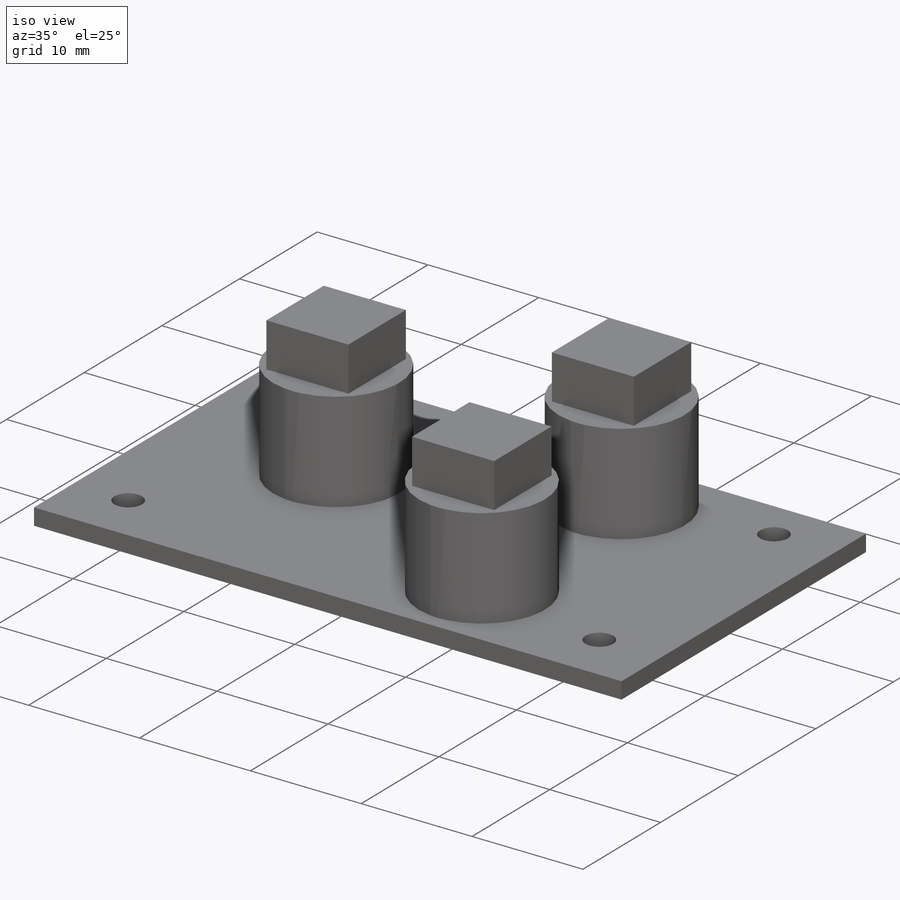
[diagram: iso view]
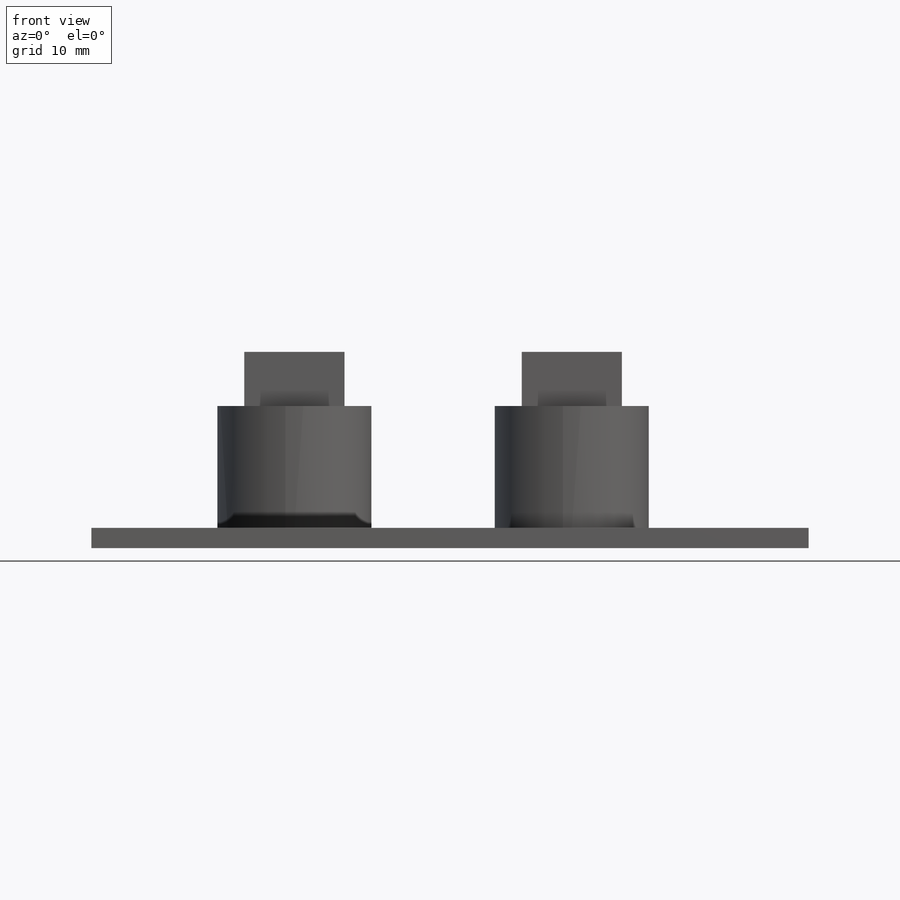
[diagram: front view]
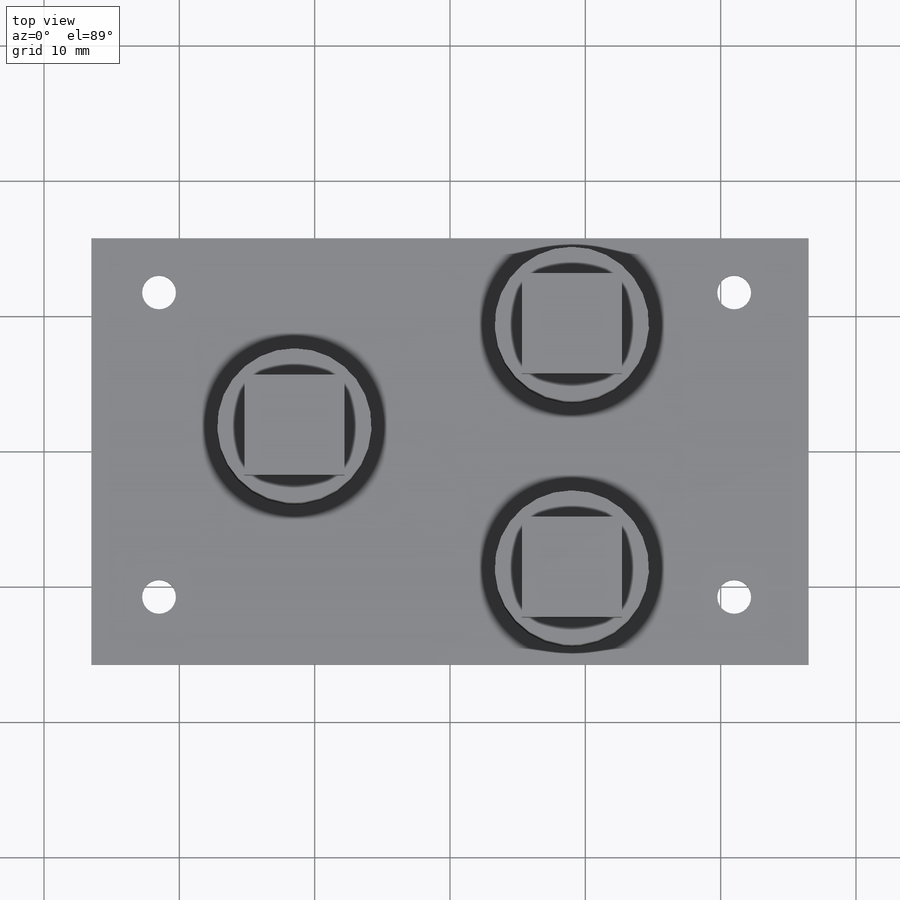
[diagram: top view]
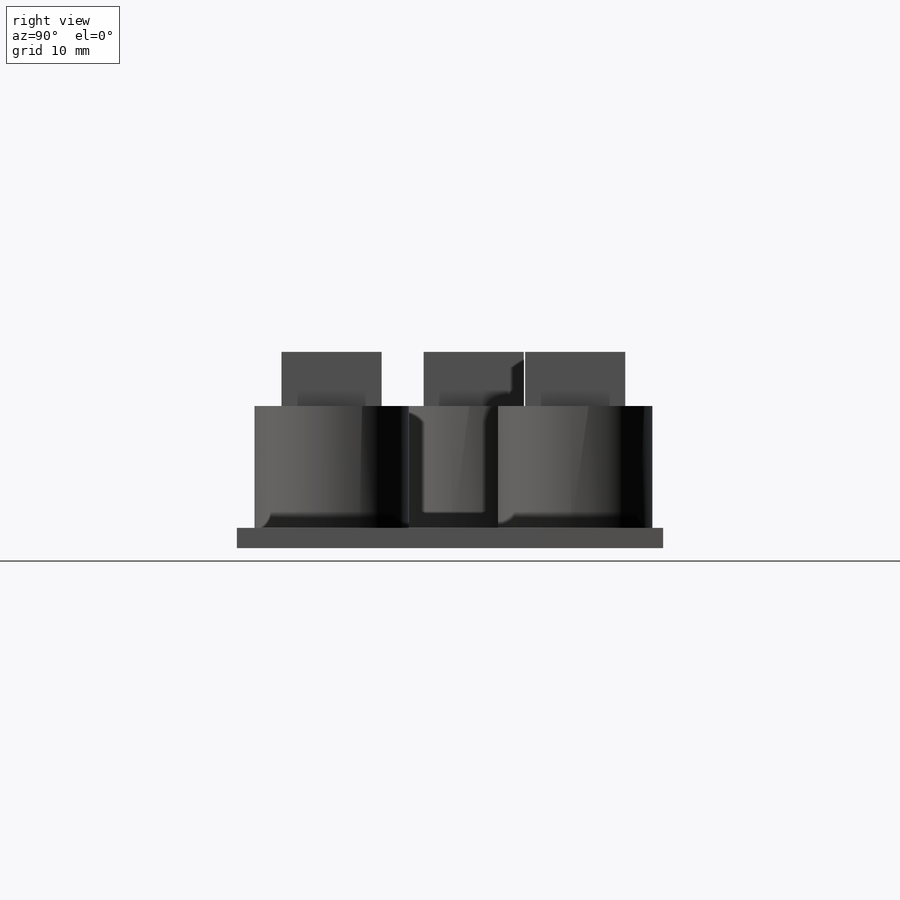
[diagram: right view]
SOLIDWORKS PART (.sldprt)
format: sldprt  version: not decoded by parser v0  size: 215,552 bytes
history: native  units: mm
features: sketch x4, plane x3, extrude x3, material x1, cut_extrude x1 (+8 scaffold rows collapsed)
feature tree (20):
  scaffold x8  (default folders/planes/origin — collapsed)
  material  "Materiale <non specificato>"
  plane  "Piano frontale"
  plane  "Piano superiore"
  plane  "Piano destro"
  sketch  "Schizzo1"  dims[D1=31.5mm D2=53.0mm]
  extrude  "Estrusione-Estrusione1"  Depth=1.5mm
  sketch  "Schizzo2"  dims[c1.D1=2.5mm c1.D4=2.5mm c1.D6=2.5mm c1.D8=2.5mm c1.D2=5.0mm c1.D3=4.0mm c1.D5=5.0mm c1.D7=22.5mm c1.D9=43.0mm c2.D5=42.5mm]
  cut_extrude  "Taglio-Estrusione1"  Depth=1.5mm
  sketch  "Schizzo3"  dims[D1=11.4mm D2=11.4mm D3=11.4mm D4=14.0mm D5=15.0mm D6=6.5mm D7=18.0mm D8=20.5mm]
  extrude  "Estrusione-Estrusione2"  Depth=9mm
  sketch  "Schizzo4"  dims[D1=7.4mm D2=7.4mm D3=7.4mm D4=7.4mm D5=7.4mm D6=7.4mm]
  extrude  "Estrusione-Estrusione3"  Depth=4mm
decode coverage: 8 of 8 modeling features carry decoded parameters
note: suppression state not decoded; provenance and decode notes live in map.json
